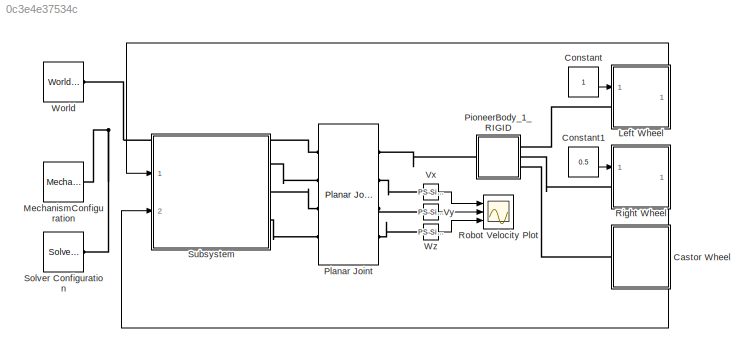
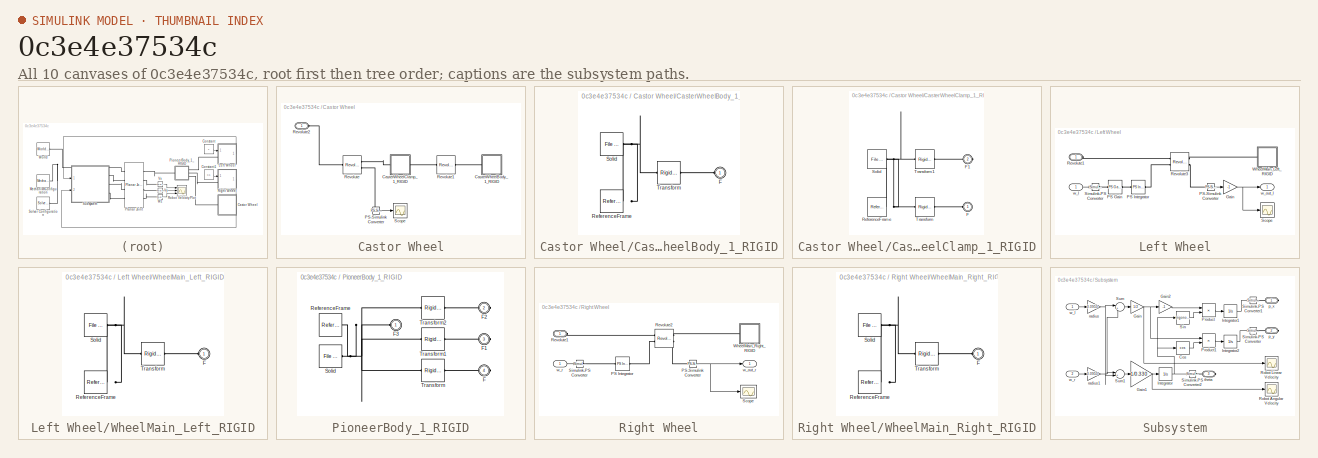
[diagram: thumbnail index - all 10 canvases of the model, root first then tree order]
MODEL slx_0c3e4e37534c
KIND model
CONFIG AbsTol = auto
CONFIG EnableMultiTasking = off
CONFIG FixedStep = auto
CONFIG MaxStep = auto
CONFIG MinStep = auto
CONFIG RelTol = 1e-3
CONFIG SampleTimeConstraint = Unconstrained
CONFIG Solver = VariableStepAuto
CONFIG SolverName = VariableStepAuto
CONFIG StartTime = 0.0
CONFIG StopTime = 10.0
BLOCK [SubSystem] Castor Wheel
  Ports = [0, 0, 0, 0, 0, 1]
  RequestExecContextInheritance = off
BLOCK [SubSystem] Castor Wheel/CasterWheelBody_1_RIGID
  Ports = [0, 0, 0, 0, 0, 1]
  RequestExecContextInheritance = off
BLOCK [PMIOPort] Castor Wheel/CasterWheelBody_1_RIGID/F
  Side = Left
BLOCK [Reference] Castor Wheel/CasterWheelBody_1_RIGID/ReferenceFrame  REF=sm_lib/Frames and
Transforms/Reference
Frame
  Ports = [0, 0, 0, 0, 0, 0, 1]
  SourceBlock = sm_lib/Frames and\nTransforms/Reference\nFrame
  SourceProductBaseCode = MS
  SourceType = Reference\nFrame
BLOCK [Reference] Castor Wheel/CasterWheelBody_1_RIGID/Solid  REF=sm_lib/Body Elements/File Solid
  Ports = [0, 0, 0, 0, 0, 0, 1]
  SourceBlock = sm_lib/Body Elements/File Solid
  SourceProductBaseCode = MS
  SourceType = File Solid
BLOCK [Reference] Castor Wheel/CasterWheelBody_1_RIGID/Transform  REF=sm_lib/Frames and
Transforms/Rigid
Transform
  Ports = [0, 0, 0, 0, 0, 1, 1]
  SourceBlock = sm_lib/Frames and\nTransforms/Rigid\nTransform
  SourceProductBaseCode = MS
  SourceType = Rigid\nTransform
BLOCK [SubSystem] Castor Wheel/CasterWheelClamp_1_RIGID
  Ports = [0, 0, 0, 0, 0, 1, 1]
  RequestExecContextInheritance = off
BLOCK [PMIOPort] Castor Wheel/CasterWheelClamp_1_RIGID/F
  Side = Left
BLOCK [PMIOPort] Castor Wheel/CasterWheelClamp_1_RIGID/F1
  Port = 2
  Side = Right
BLOCK [Reference] Castor Wheel/CasterWheelClamp_1_RIGID/ReferenceFrame  REF=sm_lib/Frames and
Transforms/Reference
Frame
  Ports = [0, 0, 0, 0, 0, 0, 1]
  SourceBlock = sm_lib/Frames and\nTransforms/Reference\nFrame
  SourceProductBaseCode = MS
  SourceType = Reference\nFrame
BLOCK [Reference] Castor Wheel/CasterWheelClamp_1_RIGID/Solid  REF=sm_lib/Body Elements/File Solid
  Ports = [0, 0, 0, 0, 0, 0, 1]
  SourceBlock = sm_lib/Body Elements/File Solid
  SourceProductBaseCode = MS
  SourceType = File Solid
BLOCK [Reference] Castor Wheel/CasterWheelClamp_1_RIGID/Transform  REF=sm_lib/Frames and
Transforms/Rigid
Transform
  Ports = [0, 0, 0, 0, 0, 1, 1]
  SourceBlock = sm_lib/Frames and\nTransforms/Rigid\nTransform
  SourceProductBaseCode = MS
  SourceType = Rigid\nTransform
BLOCK [Reference] Castor Wheel/CasterWheelClamp_1_RIGID/Transform1  REF=sm_lib/Frames and
Transforms/Rigid
Transform
  Ports = [0, 0, 0, 0, 0, 1, 1]
  SourceBlock = sm_lib/Frames and\nTransforms/Rigid\nTransform
  SourceProductBaseCode = MS
  SourceType = Rigid\nTransform
BLOCK [Reference] Castor Wheel/PS-Simulink Converter  REF=nesl_utility/PS-Simulink
Converter
  Ports = [0, 1, 0, 0, 0, 1]
  SourceBlock = nesl_utility/PS-Simulink\nConverter
  SourceProductBaseCode = SS
  SourceType = PS-Simulink\nConverter
BLOCK [Reference] Castor Wheel/Revolute  REF=sm_lib/Joints/Revolute Joint
  Ports = [0, 0, 0, 0, 0, 1, 2]
  SourceBlock = sm_lib/Joints/Revolute Joint
  SourceProductBaseCode = MS
  SourceType = Revolute Joint
BLOCK [Reference] Castor Wheel/Revolute1  REF=sm_lib/Joints/Revolute Joint
  Ports = [0, 0, 0, 0, 0, 1, 1]
  SourceBlock = sm_lib/Joints/Revolute Joint
  SourceProductBaseCode = MS
  SourceType = Revolute Joint
BLOCK [PMIOPort] Castor Wheel/Revolute2
  Side = Left
BLOCK [Scope] Castor Wheel/Scope
  Floating = off
  NumInputPorts = 1
  Ports = [1]
  ScopeSpecificationString = Simulink.scopes.TimeScopeBlockCfg('CurrentConfiguration', extmgr.ConfigurationSet(extmgr.Configuration('Core','General UI',true),extmgr.Configuration('Core','Source UI',true),extmgr.Configuration('Sources','WiredSimulink',true),extmgr.Configuration('Visuals','Time Domain',true,'SerializedDisplays',{struct('MinYLimReal','-0.00815','MaxYLimReal','0.00091','YLabelReal','','MinYLimMag','0.00000','MaxY...<+1370ch>
BLOCK [Constant] Constant
BLOCK [Constant] Constant1
  Value = 0.5
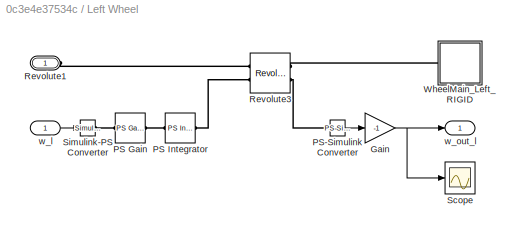
BLOCK [SubSystem] Left Wheel
  Ports = [1, 1, 0, 0, 0, 1]
  RequestExecContextInheritance = off
BLOCK [Gain] Left Wheel/Gain
  Gain = -1
BLOCK [Reference] Left Wheel/PS Gain  REF=fl_lib/Physical Signals/Functions/PS Gain
  Ports = [0, 0, 0, 0, 0, 1, 1]
  SourceBlock = fl_lib/Physical Signals/Functions/PS Gain
  SourceProductBaseCode = SS
  SourceType = PS Gain
BLOCK [Reference] Left Wheel/PS Integrator  REF=fl_lib/Physical Signals/Linear Operators/PS Integrator
  Ports = [0, 0, 0, 0, 0, 1, 1]
  SourceBlock = fl_lib/Physical Signals/Linear Operators/PS Integrator
  SourceProductBaseCode = SS
  SourceType = PS Integrator
BLOCK [Reference] Left Wheel/PS-Simulink Converter  REF=nesl_utility/PS-Simulink
Converter
  Ports = [0, 1, 0, 0, 0, 1]
  SourceBlock = nesl_utility/PS-Simulink\nConverter
  SourceProductBaseCode = SS
  SourceType = PS-Simulink\nConverter
BLOCK [PMIOPort] Left Wheel/Revolute1
  Side = Left
BLOCK [Reference] Left Wheel/Revolute3  REF=sm_lib/Joints/Revolute Joint
  Ports = [0, 0, 0, 0, 0, 2, 2]
  SourceBlock = sm_lib/Joints/Revolute Joint
  SourceProductBaseCode = MS
  SourceType = Revolute Joint
BLOCK [Scope] Left Wheel/Scope
  Floating = off
  NumInputPorts = 1
  Ports = [1]
  ScopeSpecificationString = Simulink.scopes.TimeScopeBlockCfg('CurrentConfiguration', extmgr.ConfigurationSet(extmgr.Configuration('Core','General UI',true),extmgr.Configuration('Core','Source UI',true),extmgr.Configuration('Sources','WiredSimulink',true,'DataLoggingVariableName','ScopeData2'),extmgr.Configuration('Visuals','Time Domain',true,'SerializedDisplays',{struct('MinYLimReal','-0.01287','MaxYLimReal','0.11582','YLab...<+1363ch>
BLOCK [Reference] Left Wheel/Simulink-PS Converter  REF=nesl_utility/Simulink-PS
Converter
  Ports = [1, 0, 0, 0, 0, 0, 1]
  SourceBlock = nesl_utility/Simulink-PS\nConverter
  SourceProductBaseCode = SS
  SourceType = Simulink-PS\nConverter
BLOCK [SubSystem] Left Wheel/WheelMain_Left_RIGID
  Ports = [0, 0, 0, 0, 0, 1]
  RequestExecContextInheritance = off
BLOCK [PMIOPort] Left Wheel/WheelMain_Left_RIGID/F
  Side = Left
BLOCK [Reference] Left Wheel/WheelMain_Left_RIGID/ReferenceFrame  REF=sm_lib/Frames and
Transforms/Reference
Frame
  Ports = [0, 0, 0, 0, 0, 0, 1]
  SourceBlock = sm_lib/Frames and\nTransforms/Reference\nFrame
  SourceProductBaseCode = MS
  SourceType = Reference\nFrame
BLOCK [Reference] Left Wheel/WheelMain_Left_RIGID/Solid  REF=sm_lib/Body Elements/File Solid
  Ports = [0, 0, 0, 0, 0, 0, 1]
  SourceBlock = sm_lib/Body Elements/File Solid
  SourceProductBaseCode = MS
  SourceType = File Solid
BLOCK [Reference] Left Wheel/WheelMain_Left_RIGID/Transform  REF=sm_lib/Frames and
Transforms/Rigid
Transform
  Ports = [0, 0, 0, 0, 0, 1, 1]
  SourceBlock = sm_lib/Frames and\nTransforms/Rigid\nTransform
  SourceProductBaseCode = MS
  SourceType = Rigid\nTransform
BLOCK [Inport] Left Wheel/w_l
BLOCK [Outport] Left Wheel/w_out_l
BLOCK [Reference] MechanismConfiguration  REF=sm_lib/Utilities/Mechanism
Configuration
  Ports = [0, 0, 0, 0, 0, 0, 1]
  SourceBlock = sm_lib/Utilities/Mechanism\nConfiguration
  SourceProductBaseCode = MS
  SourceType = Mechanism\nConfiguration
BLOCK [SubSystem] PioneerBody_1_RIGID
  Ports = [0, 0, 0, 0, 0, 1, 3]
  RequestExecContextInheritance = off
BLOCK [PMIOPort] PioneerBody_1_RIGID/F
  Port = 4
  Side = Right
BLOCK [PMIOPort] PioneerBody_1_RIGID/F1
  Port = 3
  Side = Right
BLOCK [PMIOPort] PioneerBody_1_RIGID/F2
  Port = 2
  Side = Right
BLOCK [PMIOPort] PioneerBody_1_RIGID/F3
  Side = Left
BLOCK [Reference] PioneerBody_1_RIGID/ReferenceFrame  REF=sm_lib/Frames and
Transforms/Reference
Frame
  Ports = [0, 0, 0, 0, 0, 0, 1]
  SourceBlock = sm_lib/Frames and\nTransforms/Reference\nFrame
  SourceProductBaseCode = MS
  SourceType = Reference\nFrame
BLOCK [Reference] PioneerBody_1_RIGID/Solid  REF=sm_lib/Body Elements/File Solid
  Ports = [0, 0, 0, 0, 0, 0, 1]
  SourceBlock = sm_lib/Body Elements/File Solid
  SourceProductBaseCode = MS
  SourceType = File Solid
BLOCK [Reference] PioneerBody_1_RIGID/Transform  REF=sm_lib/Frames and
Transforms/Rigid
Transform
  Ports = [0, 0, 0, 0, 0, 1, 1]
  SourceBlock = sm_lib/Frames and\nTransforms/Rigid\nTransform
  SourceProductBaseCode = MS
  SourceType = Rigid\nTransform
BLOCK [Reference] PioneerBody_1_RIGID/Transform1  REF=sm_lib/Frames and
Transforms/Rigid
Transform
  Ports = [0, 0, 0, 0, 0, 1, 1]
  SourceBlock = sm_lib/Frames and\nTransforms/Rigid\nTransform
  SourceProductBaseCode = MS
  SourceType = Rigid\nTransform
BLOCK [Reference] PioneerBody_1_RIGID/Transform2  REF=sm_lib/Frames and
Transforms/Rigid
Transform
  Ports = [0, 0, 0, 0, 0, 1, 1]
  SourceBlock = sm_lib/Frames and\nTransforms/Rigid\nTransform
  SourceProductBaseCode = MS
  SourceType = Rigid\nTransform
BLOCK [Reference] Planar Joint  REF=sm_lib/Joints/Planar Joint
  Ports = [0, 0, 0, 0, 0, 4, 4]
  SourceBlock = sm_lib/Joints/Planar Joint
  SourceProductBaseCode = MS
  SourceType = Planar Joint
BLOCK [SubSystem] Right Wheel
  Ports = [1, 1, 0, 0, 0, 1]
  RequestExecContextInheritance = off
BLOCK [Reference] Right Wheel/PS Integrator  REF=fl_lib/Physical Signals/Linear Operators/PS Integrator
  Ports = [0, 0, 0, 0, 0, 1, 1]
  SourceBlock = fl_lib/Physical Signals/Linear Operators/PS Integrator
  SourceProductBaseCode = SS
  SourceType = PS Integrator
BLOCK [Reference] Right Wheel/PS-Simulink Converter  REF=nesl_utility/PS-Simulink
Converter
  Ports = [0, 1, 0, 0, 0, 1]
  SourceBlock = nesl_utility/PS-Simulink\nConverter
  SourceProductBaseCode = SS
  SourceType = PS-Simulink\nConverter
BLOCK [PMIOPort] Right Wheel/Revolute1
  Side = Left
BLOCK [Reference] Right Wheel/Revolute2  REF=sm_lib/Joints/Revolute Joint
  Ports = [0, 0, 0, 0, 0, 2, 2]
  SourceBlock = sm_lib/Joints/Revolute Joint
  SourceProductBaseCode = MS
  SourceType = Revolute Joint
BLOCK [Scope] Right Wheel/Scope
  Floating = off
  NumInputPorts = 1
  Ports = [1]
  ScopeSpecificationString = Simulink.scopes.TimeScopeBlockCfg('CurrentConfiguration', extmgr.ConfigurationSet(extmgr.Configuration('Core','General UI',true),extmgr.Configuration('Core','Source UI',true),extmgr.Configuration('Sources','WiredSimulink',true,'DataLoggingVariableName','ScopeData1'),extmgr.Configuration('Visuals','Time Domain',true,'SerializedDisplays',{struct('MinYLimReal','-0.01091','MaxYLimReal','0.09817','YLab...<+1380ch>
BLOCK [Reference] Right Wheel/Simulink-PS Converter  REF=nesl_utility/Simulink-PS
Converter
  Ports = [1, 0, 0, 0, 0, 0, 1]
  SourceBlock = nesl_utility/Simulink-PS\nConverter
  SourceProductBaseCode = SS
  SourceType = Simulink-PS\nConverter
BLOCK [SubSystem] Right Wheel/WheelMain_Right_RIGID
  Ports = [0, 0, 0, 0, 0, 1]
  RequestExecContextInheritance = off
BLOCK [PMIOPort] Right Wheel/WheelMain_Right_RIGID/F
  Side = Left
BLOCK [Reference] Right Wheel/WheelMain_Right_RIGID/ReferenceFrame  REF=sm_lib/Frames and
Transforms/Reference
Frame
  Ports = [0, 0, 0, 0, 0, 0, 1]
  SourceBlock = sm_lib/Frames and\nTransforms/Reference\nFrame
  SourceProductBaseCode = MS
  SourceType = Reference\nFrame
BLOCK [Reference] Right Wheel/WheelMain_Right_RIGID/Solid  REF=sm_lib/Body Elements/File Solid
  Ports = [0, 0, 0, 0, 0, 0, 1]
  SourceBlock = sm_lib/Body Elements/File Solid
  SourceProductBaseCode = MS
  SourceType = File Solid
BLOCK [Reference] Right Wheel/WheelMain_Right_RIGID/Transform  REF=sm_lib/Frames and
Transforms/Rigid
Transform
  Ports = [0, 0, 0, 0, 0, 1, 1]
  SourceBlock = sm_lib/Frames and\nTransforms/Rigid\nTransform
  SourceProductBaseCode = MS
  SourceType = Rigid\nTransform
BLOCK [Outport] Right Wheel/w_out_r
BLOCK [Inport] Right Wheel/w_r
BLOCK [Scope] Robot Velocity Plot
  Floating = off
  NumInputPorts = 3
  Ports = [3]
  ScopeSpecificationString = Simulink.scopes.TimeScopeBlockCfg('CurrentConfiguration', extmgr.ConfigurationSet(extmgr.Configuration('Core','General UI',true),extmgr.Configuration('Core','Source UI',true),extmgr.Configuration('Sources','WiredSimulink',true,'DataLoggingVariableName','ScopeData1'),extmgr.Configuration('Visuals','Time Domain',true,'SerializedDisplays',{struct('MinYLimReal','-0.17084','MaxYLimReal','0.09814','YLab...<+1466ch>
BLOCK [Reference] Solver Configuration  REF=nesl_utility/Solver
Configuration
  Ports = [0, 0, 0, 0, 0, 0, 1]
  SourceBlock = nesl_utility/Solver\nConfiguration
  SourceProductBaseCode = SS
  SourceType = Solver\nConfiguration
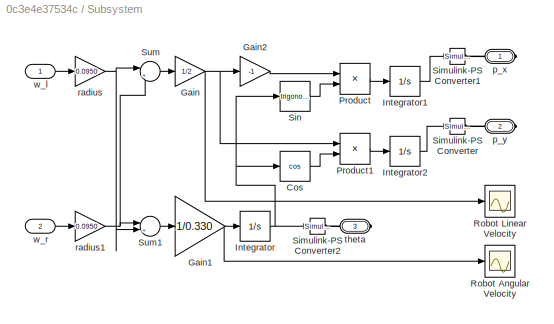
BLOCK [SubSystem] Subsystem
  Ports = [2, 0, 0, 0, 0, 0, 3]
  RequestExecContextInheritance = off
BLOCK [Trigonometry] Subsystem/Cos
  Operator = cos
  Ports = [1, 1]
BLOCK [Gain] Subsystem/Gain
  Gain = 1/2
BLOCK [Gain] Subsystem/Gain1
  Gain = 1/0.330
BLOCK [Gain] Subsystem/Gain2
  Gain = -1
BLOCK [Integrator] Subsystem/Integrator
  Ports = [1, 1]
BLOCK [Integrator] Subsystem/Integrator1
  Ports = [1, 1]
BLOCK [Integrator] Subsystem/Integrator2
  Ports = [1, 1]
BLOCK [Product] Subsystem/Product
  Ports = [2, 1]
BLOCK [Product] Subsystem/Product1
  Ports = [2, 1]
BLOCK [Scope] Subsystem/Robot Angular Velocity
  Floating = off
  NumInputPorts = 1
  Ports = [1]
  ScopeSpecificationString = Simulink.scopes.TimeScopeBlockCfg('CurrentConfiguration', extmgr.ConfigurationSet(extmgr.Configuration('Core','General UI',true),extmgr.Configuration('Core','Source UI',true),extmgr.Configuration('Sources','WiredSimulink',true,'DataLoggingVariableName','ScopeData4'),extmgr.Configuration('Visuals','Time Domain',true,'SerializedDisplays',{struct('MinYLimReal','-1.00000','MaxYLimReal','1.00000','YLab...<+1394ch>
BLOCK [Scope] Subsystem/Robot Linear Velocity
  Floating = off
  NumInputPorts = 1
  Ports = [1]
  ScopeSpecificationString = Simulink.scopes.TimeScopeBlockCfg('CurrentConfiguration', extmgr.ConfigurationSet(extmgr.Configuration('Core','General UI',true),extmgr.Configuration('Core','Source UI',true),extmgr.Configuration('Sources','WiredSimulink',true,'DataLoggingVariableName','ScopeData5'),extmgr.Configuration('Visuals','Time Domain',true,'SerializedDisplays',{struct('MinYLimReal','-0.01129','MaxYLimReal','0.10164','YLab...<+1393ch>
BLOCK [Reference] Subsystem/Simulink-PS Converter  REF=nesl_utility/Simulink-PS
Converter
  Ports = [1, 0, 0, 0, 0, 0, 1]
  SourceBlock = nesl_utility/Simulink-PS\nConverter
  SourceProductBaseCode = SS
  SourceType = Simulink-PS\nConverter
BLOCK [Reference] Subsystem/Simulink-PS Converter1  REF=nesl_utility/Simulink-PS
Converter
  Ports = [1, 0, 0, 0, 0, 0, 1]
  SourceBlock = nesl_utility/Simulink-PS\nConverter
  SourceProductBaseCode = SS
  SourceType = Simulink-PS\nConverter
BLOCK [Reference] Subsystem/Simulink-PS Converter2  REF=nesl_utility/Simulink-PS
Converter
  Ports = [1, 0, 0, 0, 0, 0, 1]
  SourceBlock = nesl_utility/Simulink-PS\nConverter
  SourceProductBaseCode = SS
  SourceType = Simulink-PS\nConverter
BLOCK [Trigonometry] Subsystem/Sin
  Ports = [1, 1]
BLOCK [Sum] Subsystem/Sum
  Inputs = |++
  Ports = [2, 1]
BLOCK [Sum] Subsystem/Sum1
  Inputs = |+-
  Ports = [2, 1]
BLOCK [PMIOPort] Subsystem/p_x
  NameLocation = top
  Side = Right
BLOCK [PMIOPort] Subsystem/p_y
  NameLocation = top
  Port = 2
  Side = Right
BLOCK [Gain] Subsystem/radius
  Gain = 0.0950
BLOCK [Gain] Subsystem/radius1
  Gain = 0.0950
BLOCK [PMIOPort] Subsystem/theta
  NameLocation = top
  Port = 3
  Side = Right
BLOCK [Inport] Subsystem/w_l
BLOCK [Inport] Subsystem/w_r
  Port = 2
BLOCK [Reference] Vx  REF=nesl_utility/PS-Simulink
Converter
  Ports = [0, 1, 0, 0, 0, 1]
  SourceBlock = nesl_utility/PS-Simulink\nConverter
  SourceProductBaseCode = SS
  SourceType = PS-Simulink\nConverter
BLOCK [Reference] Vy  REF=nesl_utility/PS-Simulink
Converter
  Ports = [0, 1, 0, 0, 0, 1]
  SourceBlock = nesl_utility/PS-Simulink\nConverter
  SourceProductBaseCode = SS
  SourceType = PS-Simulink\nConverter
BLOCK [Reference] World  REF=sm_lib/Frames and
Transforms/World Frame
  Ports = [0, 0, 0, 0, 0, 0, 1]
  SourceBlock = sm_lib/Frames and\nTransforms/World Frame
  SourceProductBaseCode = MS
  SourceType = World Frame
BLOCK [Reference] Wz  REF=nesl_utility/PS-Simulink
Converter
  Ports = [0, 1, 0, 0, 0, 1]
  SourceBlock = nesl_utility/PS-Simulink\nConverter
  SourceProductBaseCode = SS
  SourceType = PS-Simulink\nConverter
LINE Castor Wheel/PS-Simulink Converter:1 -> Castor Wheel/Scope:1
LINE Constant1:1 -> Right Wheel:1
LINE Constant:1 -> Left Wheel:1
NET Left Wheel/Gain:1 -> Left Wheel/Scope:1, Left Wheel/w_out_l:1
LINE Left Wheel/PS-Simulink Converter:1 -> Left Wheel/Gain:1
LINE Left Wheel/w_l:1 -> Left Wheel/Simulink-PS Converter:1
LINE Left Wheel:1 -> Subsystem:1
NET Right Wheel/PS-Simulink Converter:1 -> Right Wheel/Scope:1, Right Wheel/w_out_r:1
LINE Right Wheel/w_r:1 -> Right Wheel/Simulink-PS Converter:1
LINE Right Wheel:1 -> Subsystem:2
LINE Subsystem/Cos:1 -> Subsystem/Product1:2
NET Subsystem/Gain1:1 -> Subsystem/Integrator:1, Subsystem/Robot Angular Velocity:1
LINE Subsystem/Gain2:1 -> Subsystem/Product:1
NET Subsystem/Gain:1 -> Subsystem/Gain2:1, Subsystem/Product1:1, Subsystem/Robot Linear Velocity:1
LINE Subsystem/Integrator1:1 -> Subsystem/Simulink-PS Converter1:1
LINE Subsystem/Integrator2:1 -> Subsystem/Simulink-PS Converter:1
NET Subsystem/Integrator:1 -> Subsystem/Cos:1, Subsystem/Simulink-PS Converter2:1, Subsystem/Sin:1
LINE Subsystem/Product1:1 -> Subsystem/Integrator2:1
LINE Subsystem/Product:1 -> Subsystem/Integrator1:1
LINE Subsystem/Sin:1 -> Subsystem/Product:2
LINE Subsystem/Sum1:1 -> Subsystem/Gain1:1
LINE Subsystem/Sum:1 -> Subsystem/Gain:1
NET Subsystem/radius1:1 -> Subsystem/Sum1:1, Subsystem/Sum:2
NET Subsystem/radius:1 -> Subsystem/Sum1:2, Subsystem/Sum:1
LINE Subsystem/w_l:1 -> Subsystem/radius:1
LINE Subsystem/w_r:1 -> Subsystem/radius1:1
LINE Vx:1 -> Robot Velocity Plot:1
LINE Vy:1 -> Robot Velocity Plot:2
LINE Wz:1 -> Robot Velocity Plot:3
PLINE Castor Wheel/CasterWheelBody_1_RIGID/F:RConn1 -- Castor Wheel/CasterWheelBody_1_RIGID/Transform:RConn1
PNET net1: Castor Wheel/CasterWheelBody_1_RIGID/ReferenceFrame:RConn1 -- Castor Wheel/CasterWheelBody_1_RIGID/Solid:RConn1 -- Castor Wheel/CasterWheelBody_1_RIGID/Transform:LConn1
PLINE Castor Wheel/CasterWheelBody_1_RIGID:LConn1 -- Castor Wheel/Revolute1:RConn1
PLINE Castor Wheel/CasterWheelClamp_1_RIGID/F1:RConn1 -- Castor Wheel/CasterWheelClamp_1_RIGID/Transform1:RConn1
PLINE Castor Wheel/CasterWheelClamp_1_RIGID/F:RConn1 -- Castor Wheel/CasterWheelClamp_1_RIGID/Transform:RConn1
PNET net2: Castor Wheel/CasterWheelClamp_1_RIGID/ReferenceFrame:RConn1 -- Castor Wheel/CasterWheelClamp_1_RIGID/Solid:RConn1 -- Castor Wheel/CasterWheelClamp_1_RIGID/Transform1:LConn1 -- Castor Wheel/CasterWheelClamp_1_RIGID/Transform:LConn1
PLINE Castor Wheel/CasterWheelClamp_1_RIGID:LConn1 -- Castor Wheel/Revolute:RConn1
PLINE Castor Wheel/CasterWheelClamp_1_RIGID:RConn1 -- Castor Wheel/Revolute1:LConn1
PLINE Castor Wheel/PS-Simulink Converter:LConn1 -- Castor Wheel/Revolute:RConn2
PLINE Castor Wheel/Revolute2:RConn1 -- Castor Wheel/Revolute:LConn1
PLINE Castor Wheel:LConn1 -- PioneerBody_1_RIGID:RConn3
PLINE Left Wheel/PS Gain:LConn1 -- Left Wheel/Simulink-PS Converter:RConn1
PLINE Left Wheel/PS Gain:RConn1 -- Left Wheel/PS Integrator:LConn1
PLINE Left Wheel/PS Integrator:RConn1 -- Left Wheel/Revolute3:LConn2
PLINE Left Wheel/PS-Simulink Converter:LConn1 -- Left Wheel/Revolute3:RConn2
PLINE Left Wheel/Revolute1:RConn1 -- Left Wheel/Revolute3:LConn1
PLINE Left Wheel/Revolute3:RConn1 -- Left Wheel/WheelMain_Left_RIGID:LConn1
PLINE Left Wheel/WheelMain_Left_RIGID/F:RConn1 -- Left Wheel/WheelMain_Left_RIGID/Transform:RConn1
PNET net3: Left Wheel/WheelMain_Left_RIGID/ReferenceFrame:RConn1 -- Left Wheel/WheelMain_Left_RIGID/Solid:RConn1 -- Left Wheel/WheelMain_Left_RIGID/Transform:LConn1
PLINE Left Wheel:LConn1 -- PioneerBody_1_RIGID:RConn1
PNET net4: MechanismConfiguration:RConn1 -- Planar Joint:LConn1 -- Solver Configuration:RConn1 -- World:RConn1
PLINE PioneerBody_1_RIGID/F1:RConn1 -- PioneerBody_1_RIGID/Transform1:RConn1
PLINE PioneerBody_1_RIGID/F2:RConn1 -- PioneerBody_1_RIGID/Transform2:RConn1
PNET net5: PioneerBody_1_RIGID/F3:RConn1 -- PioneerBody_1_RIGID/ReferenceFrame:RConn1 -- PioneerBody_1_RIGID/Solid:RConn1 -- PioneerBody_1_RIGID/Transform1:LConn1 -- PioneerBody_1_RIGID/Transform2:LConn1 -- PioneerBody_1_RIGID/Transform:LConn1
PLINE PioneerBody_1_RIGID/F:RConn1 -- PioneerBody_1_RIGID/Transform:RConn1
PLINE PioneerBody_1_RIGID:LConn1 -- Planar Joint:RConn1
PLINE PioneerBody_1_RIGID:RConn2 -- Right Wheel:LConn1
PLINE Planar Joint:LConn2 -- Subsystem:RConn1
PLINE Planar Joint:LConn3 -- Subsystem:RConn2
PLINE Planar Joint:LConn4 -- Subsystem:RConn3
PLINE Planar Joint:RConn2 -- Vx:LConn1
PLINE Planar Joint:RConn3 -- Vy:LConn1
PLINE Planar Joint:RConn4 -- Wz:LConn1
PLINE Right Wheel/PS Integrator:LConn1 -- Right Wheel/Simulink-PS Converter:RConn1
PLINE Right Wheel/PS Integrator:RConn1 -- Right Wheel/Revolute2:LConn2
PLINE Right Wheel/PS-Simulink Converter:LConn1 -- Right Wheel/Revolute2:RConn2
PLINE Right Wheel/Revolute1:RConn1 -- Right Wheel/Revolute2:LConn1
PLINE Right Wheel/Revolute2:RConn1 -- Right Wheel/WheelMain_Right_RIGID:LConn1
PLINE Right Wheel/WheelMain_Right_RIGID/F:RConn1 -- Right Wheel/WheelMain_Right_RIGID/Transform:RConn1
PNET net6: Right Wheel/WheelMain_Right_RIGID/ReferenceFrame:RConn1 -- Right Wheel/WheelMain_Right_RIGID/Solid:RConn1 -- Right Wheel/WheelMain_Right_RIGID/Transform:LConn1
PLINE Subsystem/Simulink-PS Converter1:RConn1 -- Subsystem/p_x:RConn1
PLINE Subsystem/Simulink-PS Converter2:RConn1 -- Subsystem/theta:RConn1
PLINE Subsystem/Simulink-PS Converter:RConn1 -- Subsystem/p_y:RConn1
note: NET lines group one-source signal fan-out (src -> all destinations, sorted); 1:1 wires keep LINE; PNET lines group multi-terminal physical nets as a canonical sorted terminal list (undirected conserving connections); 2-terminal nets keep the pairwise PLINE form
